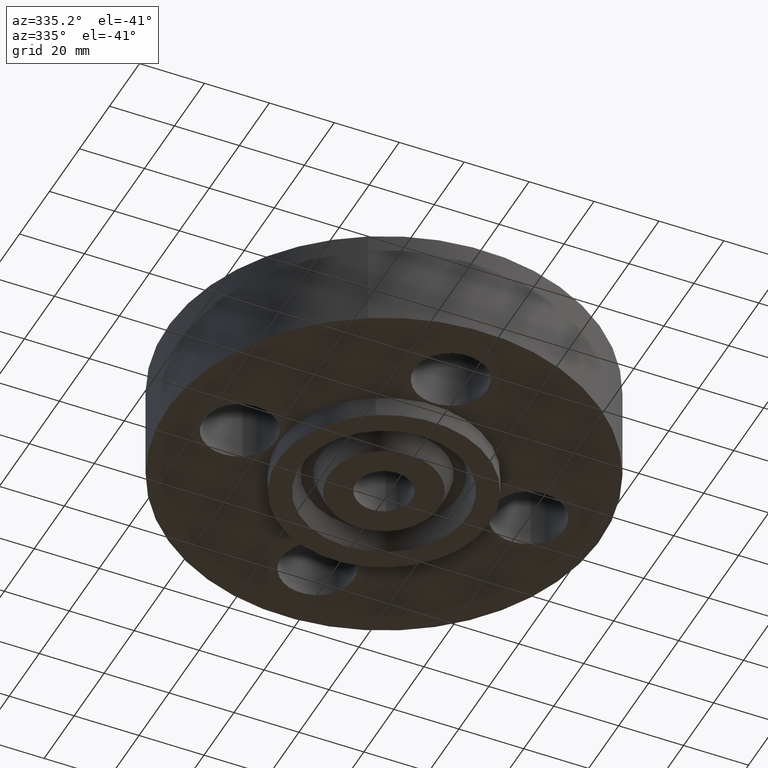
[diagram: clean part render]
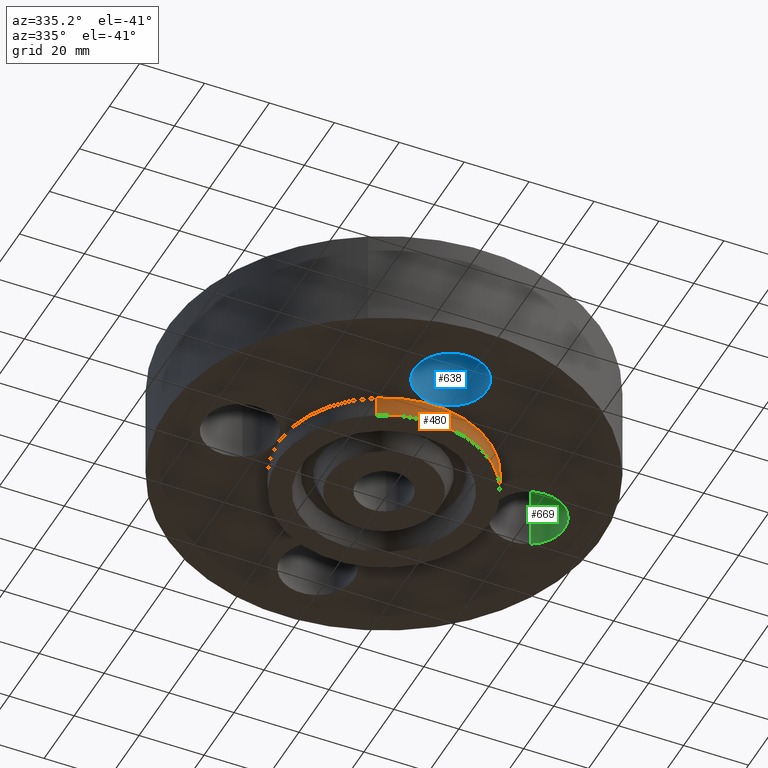
[diagram: same view with three faces highlighted in distinct colors, each labeled with its STEP entity id]
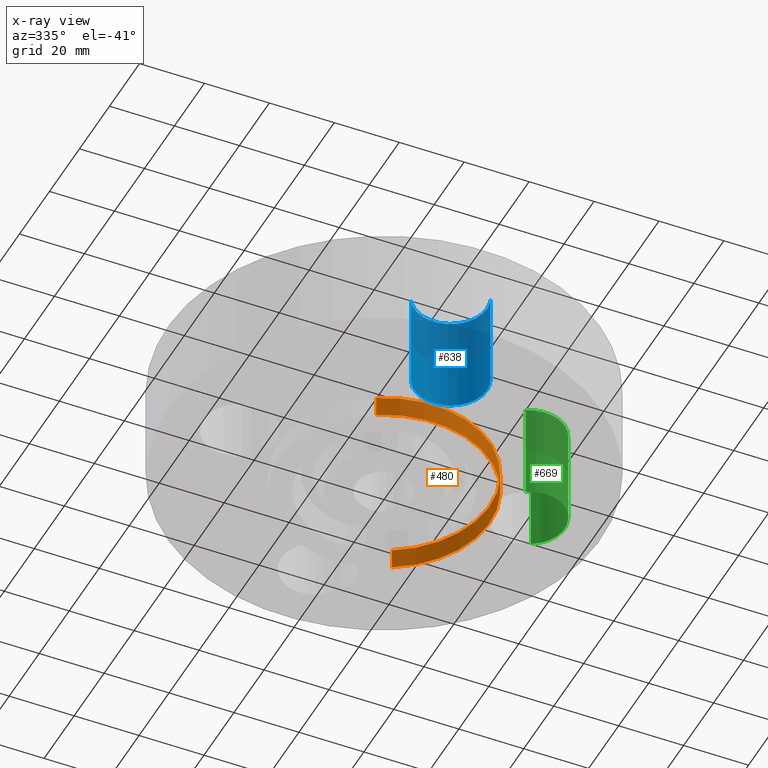
[diagram: x-ray of the same camera — body ghosted, the three highlighted faces saturated]
A machine part, auxiliary view with three faces highlighted in distinct colors.
The next image is the same camera in x-ray (body ghosted, the three faces saturated) — at least one of them is partly hidden behind the body in this view.
Their STEP definitions:

[orange] entity #480 — the highlighted cylindrical surface (partial cylindrical patch) has radius 32.5501 mm, axis along (0, 0, -1).
#427=AXIS2_PLACEMENT_3D('Cylinder Axis2P3D',#424,#425,#426) ;
#466=AXIS2_PLACEMENT_3D('Circle Axis2P3D',#464,#465,$) ;
#471=AXIS2_PLACEMENT_3D('Circle Axis2P3D',#469,#470,$) ;
#424=CARTESIAN_POINT('Axis2P3D Location',(0.,0.,1.31500000001)) ;
#433=CARTESIAN_POINT('Vertex',(-0.614383827724,-1.12462205307,-0.250000000001)) ;
#435=CARTESIAN_POINT('Vertex',(0.614383827724,1.12462205307,-0.250000000001)) ;
#438=CARTESIAN_POINT('Line Origine',(-0.614383827724,-1.12462205307,-0.125000000001)) ;
#442=CARTESIAN_POINT('Vertex',(-0.614383827724,-1.12462205307,0.)) ;
#449=CARTESIAN_POINT('Vertex',(0.614383827724,1.12462205307,0.)) ;
#452=CARTESIAN_POINT('Line Origine',(0.614383827724,1.12462205307,-0.125000000001)) ;
#464=CARTESIAN_POINT('Axis2P3D Location',(0.,0.,-0.250000000001)) ;
#469=CARTESIAN_POINT('Axis2P3D Location',(0.,0.,0.)) ;
#425=DIRECTION('Axis2P3D Direction',(0.,0.,-0.0393700787402)) ;
#426=DIRECTION('Axis2P3D XDirection',(0.0188750212049,0.0345504945626,0.)) ;
#439=DIRECTION('Vector Direction',(0.,0.,-0.0393700787402)) ;
#453=DIRECTION('Vector Direction',(0.,0.,-0.0393700787402)) ;
#465=DIRECTION('Axis2P3D Direction',(0.,0.,-0.0393700787402)) ;
#470=DIRECTION('Axis2P3D Direction',(0.,0.,-0.0393700787402)) ;
#440=VECTOR('Line Direction',#439,0.0393700787402) ;
#454=VECTOR('Line Direction',#453,0.0393700787402) ;
#475=ORIENTED_EDGE('',*,*,#468,.F.) ;
#476=ORIENTED_EDGE('',*,*,#456,.T.) ;
#477=ORIENTED_EDGE('',*,*,#473,.T.) ;
#478=ORIENTED_EDGE('',*,*,#444,.F.) ;
#480=ADVANCED_FACE('PartBody',(#479),#428,.T.) ;
#467=CIRCLE('generated circle',#466,1.28150000001) ;
#472=CIRCLE('generated circle',#471,1.28150000001) ;
#428=CYLINDRICAL_SURFACE('generated cylinder',#427,1.28150000001) ;
#444=EDGE_CURVE('',#434,#443,#441,.F.) ;
#456=EDGE_CURVE('',#436,#450,#455,.F.) ;
#468=EDGE_CURVE('',#436,#434,#467,.T.) ;
#473=EDGE_CURVE('',#450,#443,#472,.T.) ;
#474=EDGE_LOOP('',(#475,#476,#477,#478)) ;
#479=FACE_OUTER_BOUND('',#474,.T.) ;
#441=LINE('Line',#438,#440) ;
#455=LINE('Line',#452,#454) ;
#434=VERTEX_POINT('',#433) ;
#436=VERTEX_POINT('',#435) ;
#443=VERTEX_POINT('',#442) ;
#450=VERTEX_POINT('',#449) ;

[blue] entity #638 — the highlighted cylindrical surface (partial cylindrical patch) has radius 11.176 mm, axis along (-0, 0, -1).
#527=AXIS2_PLACEMENT_3D('Circle Axis2P3D',#525,#526,$) ;
#599=AXIS2_PLACEMENT_3D('Cylinder Axis2P3D',#596,#597,#598) ;
#629=AXIS2_PLACEMENT_3D('Circle Axis2P3D',#627,#628,$) ;
#520=CARTESIAN_POINT('Vertex',(0.386136327233,-1.96094723699,0.)) ;
#522=CARTESIAN_POINT('Vertex',(-0.386136327233,-1.53905276302,0.)) ;
#525=CARTESIAN_POINT('Axis2P3D Location',(2.44773580232E-016,-1.75000000001,0.)) ;
#596=CARTESIAN_POINT('Axis2P3D Location',(2.14313189852E-016,-1.75000000001,1.18606299213)) ;
#601=CARTESIAN_POINT('Line Origine',(0.386136327233,-1.96094723699,0.595000000002)) ;
#605=CARTESIAN_POINT('Vertex',(0.386136327233,-1.96094723699,1.19)) ;
#608=CARTESIAN_POINT('Line Origine',(-0.386136327233,-1.53905276302,0.595000000002)) ;
#612=CARTESIAN_POINT('Vertex',(-0.386136327233,-1.53905276302,1.19)) ;
#627=CARTESIAN_POINT('Axis2P3D Location',(2.14313189852E-016,-1.75000000001,1.19)) ;
#526=DIRECTION('Axis2P3D Direction',(0.,0.,-0.0393700787402)) ;
#597=DIRECTION('Axis2P3D Direction',(-0.,0.,-0.0393700787402)) ;
#598=DIRECTION('Axis2P3D XDirection',(-0.0345504945626,0.0188750212049,0.)) ;
#602=DIRECTION('Vector Direction',(0.,0.,-0.0393700787402)) ;
#609=DIRECTION('Vector Direction',(0.,0.,-0.0393700787402)) ;
#628=DIRECTION('Axis2P3D Direction',(-0.,0.,-0.0393700787402)) ;
#603=VECTOR('Line Direction',#602,0.0393700787402) ;
#610=VECTOR('Line Direction',#609,0.0393700787402) ;
#633=ORIENTED_EDGE('',*,*,#614,.F.) ;
#634=ORIENTED_EDGE('',*,*,#529,.T.) ;
#635=ORIENTED_EDGE('',*,*,#607,.T.) ;
#636=ORIENTED_EDGE('',*,*,#631,.F.) ;
#638=ADVANCED_FACE('PartBody',(#637),#600,.F.) ;
#528=CIRCLE('generated circle',#527,0.440000000002) ;
#630=CIRCLE('generated circle',#629,0.440000000002) ;
#600=CYLINDRICAL_SURFACE('generated cylinder',#599,0.440000000002) ;
#529=EDGE_CURVE('',#523,#521,#528,.T.) ;
#607=EDGE_CURVE('',#521,#606,#604,.F.) ;
#614=EDGE_CURVE('',#523,#613,#611,.F.) ;
#631=EDGE_CURVE('',#613,#606,#630,.T.) ;
#632=EDGE_LOOP('',(#633,#634,#635,#636)) ;
#637=FACE_OUTER_BOUND('',#632,.T.) ;
#604=LINE('Line',#601,#603) ;
#611=LINE('Line',#608,#610) ;
#521=VERTEX_POINT('',#520) ;
#523=VERTEX_POINT('',#522) ;
#606=VERTEX_POINT('',#605) ;
#613=VERTEX_POINT('',#612) ;

[green] entity #669 — the highlighted cylindrical surface (partial cylindrical patch) has radius 11.176 mm, axis along (0, -0, -1).
#500=AXIS2_PLACEMENT_3D('Circle Axis2P3D',#498,#499,$) ;
#642=AXIS2_PLACEMENT_3D('Cylinder Axis2P3D',#639,#640,#641) ;
#660=AXIS2_PLACEMENT_3D('Circle Axis2P3D',#658,#659,$) ;
#498=CARTESIAN_POINT('Axis2P3D Location',(1.75000000001,-2.79741234551E-016,0.)) ;
#502=CARTESIAN_POINT('Vertex',(1.96094723699,0.386136327233,0.)) ;
#504=CARTESIAN_POINT('Vertex',(1.53905276302,-0.386136327233,0.)) ;
#639=CARTESIAN_POINT('Axis2P3D Location',(1.75000000001,-1.72584639625E-016,1.18606299213)) ;
#644=CARTESIAN_POINT('Line Origine',(1.96094723699,0.386136327233,0.595000000002)) ;
#648=CARTESIAN_POINT('Vertex',(1.96094723699,0.386136327233,1.19)) ;
#651=CARTESIAN_POINT('Line Origine',(1.53905276302,-0.386136327233,0.595000000002)) ;
#655=CARTESIAN_POINT('Vertex',(1.53905276302,-0.386136327233,1.19)) ;
#658=CARTESIAN_POINT('Axis2P3D Location',(1.75000000001,-1.72584639625E-016,1.19)) ;
#499=DIRECTION('Axis2P3D Direction',(0.,0.,-0.0393700787402)) ;
#640=DIRECTION('Axis2P3D Direction',(0.,-0.,-0.0393700787402)) ;
#641=DIRECTION('Axis2P3D XDirection',(-0.0188750212049,-0.0345504945626,0.)) ;
#645=DIRECTION('Vector Direction',(0.,0.,-0.0393700787402)) ;
#652=DIRECTION('Vector Direction',(0.,0.,-0.0393700787402)) ;
#659=DIRECTION('Axis2P3D Direction',(0.,-0.,-0.0393700787402)) ;
#646=VECTOR('Line Direction',#645,0.0393700787402) ;
#653=VECTOR('Line Direction',#652,0.0393700787402) ;
#664=ORIENTED_EDGE('',*,*,#650,.F.) ;
#665=ORIENTED_EDGE('',*,*,#506,.T.) ;
#666=ORIENTED_EDGE('',*,*,#657,.T.) ;
#667=ORIENTED_EDGE('',*,*,#662,.F.) ;
#669=ADVANCED_FACE('PartBody',(#668),#643,.F.) ;
#501=CIRCLE('generated circle',#500,0.440000000002) ;
#661=CIRCLE('generated circle',#660,0.440000000002) ;
#643=CYLINDRICAL_SURFACE('generated cylinder',#642,0.440000000002) ;
#506=EDGE_CURVE('',#503,#505,#501,.T.) ;
#650=EDGE_CURVE('',#503,#649,#647,.F.) ;
#657=EDGE_CURVE('',#505,#656,#654,.F.) ;
#662=EDGE_CURVE('',#649,#656,#661,.T.) ;
#663=EDGE_LOOP('',(#664,#665,#666,#667)) ;
#668=FACE_OUTER_BOUND('',#663,.T.) ;
#647=LINE('Line',#644,#646) ;
#654=LINE('Line',#651,#653) ;
#503=VERTEX_POINT('',#502) ;
#505=VERTEX_POINT('',#504) ;
#649=VERTEX_POINT('',#648) ;
#656=VERTEX_POINT('',#655) ;